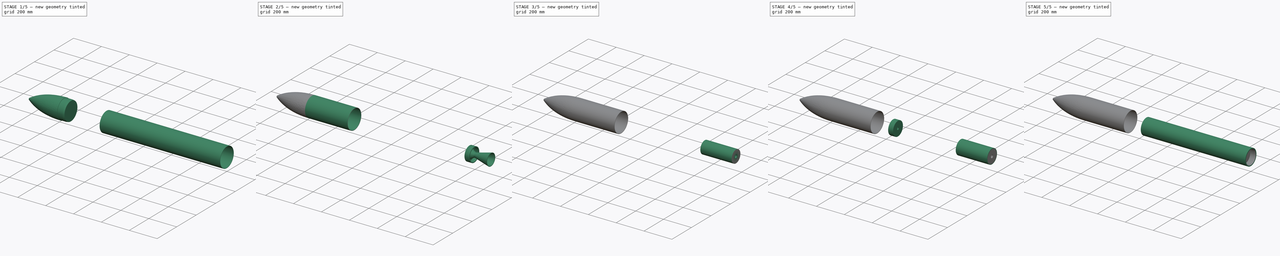
[diagram: build sequence overview — one tinted view per stage of 5, left to right]
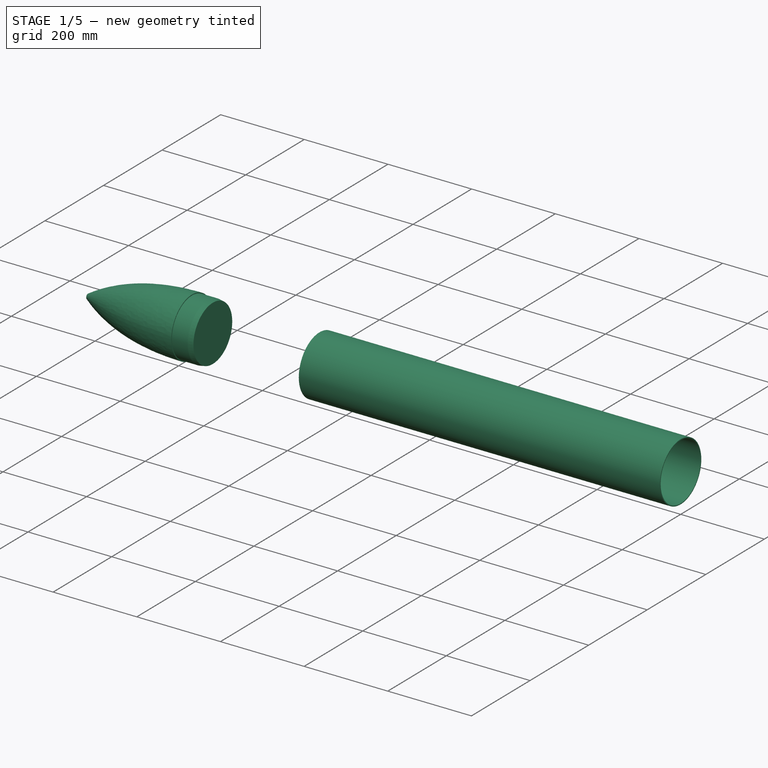
[diagram: stage 1 of 5 — iso view after this stage's code; geometry added in this stage tinted green]
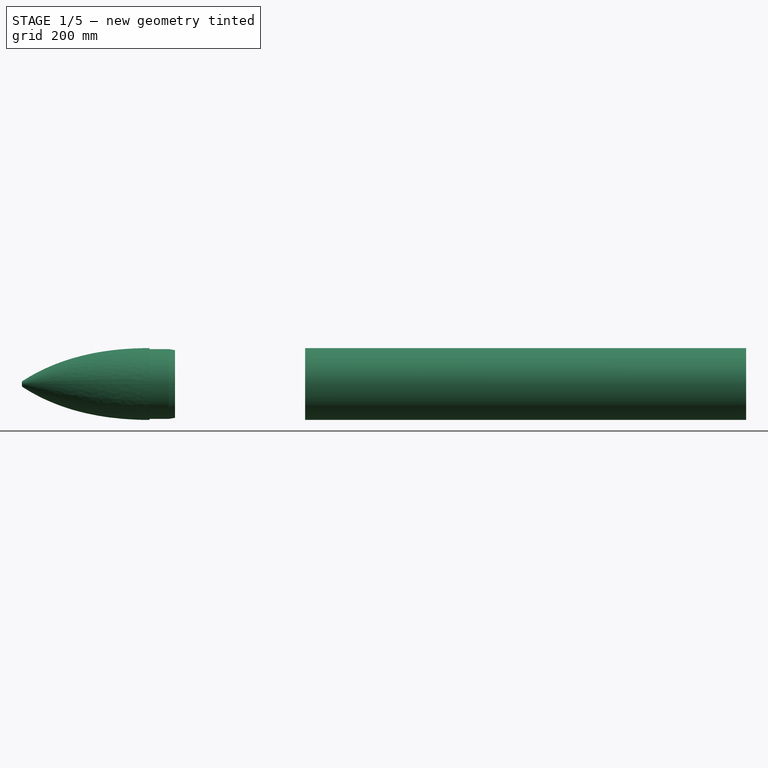
[diagram: stage 1 of 5 — front view after this stage's code; geometry added in this stage tinted green]
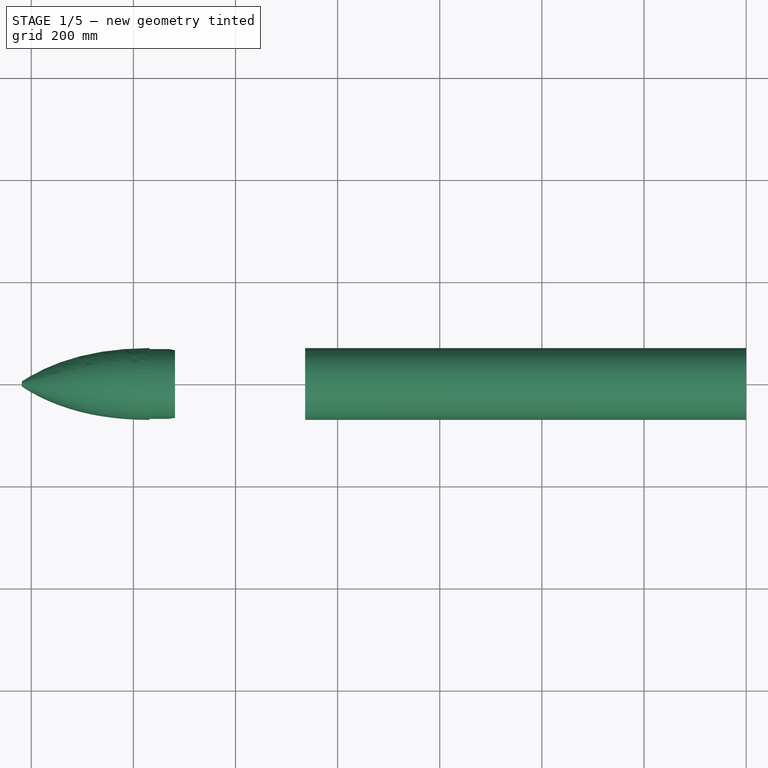
[diagram: stage 1 of 5 — top view after this stage's code; geometry added in this stage tinted green]
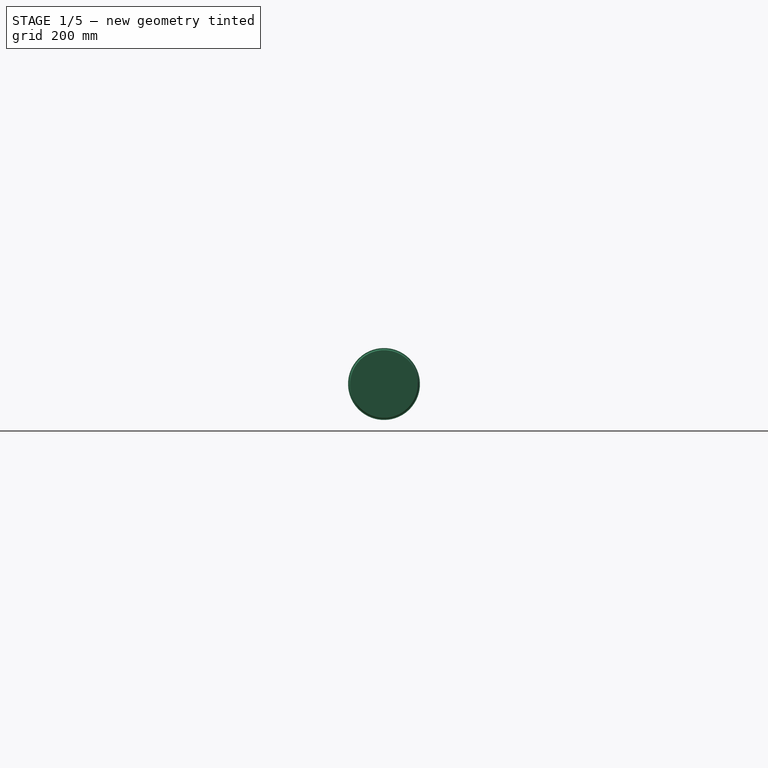
[diagram: stage 1 of 5 — right view after this stage's code; geometry added in this stage tinted green]
FCSTD DOCUMENT  (FreeCAD 0.19R24267 +148 (Git))
Label: rocket3
License: All rights reserved
LicenseURL: http://en.wikipedia.org/wiki/All_rights_reserved
objects: Sketcher::SketchObject×13, PartDesign::Body×8, App::Part×7, PartDesign::CoordinateSystem×6, PartDesign::Pad×5, PartDesign::Revolution×4, PartDesign::Fillet×4, App::DocumentObjectGroup×3, PartDesign::Plane×3, PartDesign::Hole×3, PartDesign::Groove×2, PartDesign::PolarPattern×2, App::Link×2, App::FeaturePython×1, Spreadsheet::Sheet×1, PartDesign::Chamfer×1, Part::Feature×1
note: 71 computed .brp shape members not serialized (recipe doc carries the construction recipe); baked Part::Feature solids carry a one-line shape summary decoded from their .brp

FEATURE [PartDesign::Body] Body004  label="fuel"
  Group = -> [Sketch009,Pad002]
  Origin = -> Origin009
  Tip = -> Pad002
FEATURE [App::Part] FuelSegment
  Group = -> [LCS_0001,Body003,Body004]
  Origin = -> Origin007
FEATURE [App::Link] FuelSegment001
  AssemblyType = Part::Link
  AttachedBy = #LCS_0001
  AttachedTo = Parent Assembly#LCS_Origin
  AttachmentOffset = pos=(-225,0,0) rot=(0,0,1;0rad)
  LinkPlacement = pos=(-225,0,0) rot=(0,0,1;0rad)
  LinkedObject = -> FuelSegment
  Placement = pos=(-225,0,0) rot=(0,0,1;0rad)
  SolverId = Asm4EE
  expr: Placement = LCS_Origin.Placement * AttachmentOffset * LCS_0001.Placement ^ -1
FEATURE [App::Link] FuelSegment002
  AssemblyType = Part::Link
  AttachedBy = #LCS_0001
  AttachedTo = Parent Assembly#LCS_Origin
  AttachmentOffset = pos=(-450,0,0) rot=(0,0,1;0rad)
  LinkPlacement = pos=(-450,0,0) rot=(0,0,1;0rad)
  LinkedObject = -> FuelSegment
  Placement = pos=(-450,0,0) rot=(0,0,1;0rad)
  SolverId = Asm4EE
  expr: Placement = LCS_Origin.Placement * AttachmentOffset * LCS_0001.Placement ^ -1
FEATURE [App::Part] Assembly  label="motor"
  AssemblyType = Part::Link
  Group = -> [LCS_Origin,Variables,Constraints,Configurations,Nozzle,FuelSegment001,FuelSegment002]
  LabelDocUser = rocket
  LabelPartUser = motor
  Origin = -> Origin
  Type = Assembly
FEATURE [PartDesign::CoordinateSystem] LCS_0002
  AttacherType = Attacher::AttachEngine3D
  MapMode = 2
  Support = -> [X_Axis010]
FEATURE [Sketcher::SketchObject] Sketch010
  FullyConstrained = true
  MapMode = 5
  Placement = pos=(0,0,0) rot=(0.57735,0.57735,0.57735;2.0944rad)
  Support = -> [YZ_Plane011]
  expr: Constraints[3] = Spreadsheet.E9 + Spreadsheet.E11
  expr: Constraints[2] = Spreadsheet.E9
  sketch-geometry (2):
    g0: Circle CenterX=0 CenterY=0 CenterZ=0 NormalX=0 NormalY=0 NormalZ=1 AngleXU=0 Radius=68.326
    g1: Circle CenterX=0 CenterY=0 CenterZ=0 NormalX=0 NormalY=0 NormalZ=1 AngleXU=0 Radius=70.358
  constraints (4):
    c: Coincident(g0,g-1)
    c: Coincident(g1,g0)
    c: Radius(g0) = 68.326
    c: Radius(g1) = 70.358
FEATURE [PartDesign::Pad] Pad003
  Direction = (1,1,1)
  Length = 863.6
  Length2 = 100
  Placement = pos=(0,0,0) rot=(0.57735,0.57735,0.57735;2.0944rad)
  Profile = -> Sketch010
  Reversed = true
  Type = 0
  expr: Length = Spreadsheet.G8
FEATURE [PartDesign::Body] Body006  label="TopTube"
  Group = -> [DatumPlane003,Sketch011,Pad004]
  Origin = -> Origin012
  Tip = -> Pad004
FEATURE [App::Part] OuterTube
  Group = -> [LCS_0002,Body005,Body006]
  Origin = -> Origin010
FEATURE [PartDesign::CoordinateSystem] LCS_0003
  AttacherType = Attacher::AttachEngine3D
  MapMode = 2
  Support = -> [X_Axis013]
FEATURE [PartDesign::CoordinateSystem] LCS_0004
  AttacherType = Attacher::AttachEngine3D
  MapMode = 2
  Support = -> [X_Axis014]
FEATURE [Sketcher::SketchObject] Sketch012
  FullyConstrained = false
  MapMode = 5
  Support = -> [XY_Plane014]
  expr: Constraints[18] = Spreadsheet.G10 * 0.6
  expr: Constraints[6] = Spreadsheet.E9 + Spreadsheet.E11
  expr: Constraints[5] = Spreadsheet.G10
  expr: Constraints[32] = Spreadsheet.E11
  expr: Constraints[3] = Spreadsheet.G8 + Spreadsheet.G9
  sketch-geometry (13):
    g0: LineSegment StartX=-1168.4 StartY=0 StartZ=0 EndX=-1418.4 EndY=0 EndZ=0
    g1: LineSegment StartX=-1168.4 StartY=0 StartZ=0 EndX=-1168.4 EndY=-70.358 EndZ=0
    g2: Circle CenterX=-1168.4 CenterY=-70.358 CenterZ=0 NormalX=0 NormalY=0 NormalZ=1 AngleXU=0 Radius=1
    g3: Circle CenterX=-1318.4 CenterY=-70.358 CenterZ=0 NormalX=0 NormalY=0 NormalZ=1 AngleXU=0 Radius=1
    g4: Circle CenterX=-1418.4 CenterY=-5 CenterZ=0 NormalX=0 NormalY=0 NormalZ=1 AngleXU=0 Radius=1
    g5: BSplineCurve PolesCount=3 KnotsCount=2 Degree=2 IsPeriodic=0
    g6: GeomPoint X=-1168.4 Y=-70.358 Z=0
    g7: GeomPoint X=-1418.4 Y=-5 Z=0
    g8: LineSegment StartX=-1418.4 StartY=-5 StartZ=0 EndX=-1418.4 EndY=0 EndZ=0
    g9: LineSegment StartX=-1168.4 StartY=-70.358 StartZ=0 EndX=-1168.4 EndY=-68.326 EndZ=0
    g10: LineSegment StartX=-1168.4 StartY=-68.326 StartZ=0 EndX=-1118.4 EndY=-68.326 EndZ=0
    g11: LineSegment StartX=-1168.4 StartY=0 StartZ=0 EndX=-1118.4 EndY=0 EndZ=0
    g12: LineSegment StartX=-1118.4 StartY=-68.326 StartZ=0 EndX=-1118.4 EndY=0 EndZ=0
  constraints (33):
    c: Horizontal(g0)
    c: Coincident(g1,g0)
    c: Vertical(g1)
    c: DistanceX(g1,g-1) = 1168.4
    c: PointOnObject(g0,g-1)
    c: DistanceX(g0,g0) = 250
    c: DistanceY(g1,g1) = 70.358
    c: Coincident(g5,g1)
    c: Weight(g2) = 1
    c: Equal(g2,g3)
    c: Equal(g2,g4)
    c: InternalAlignment(g2,g5)
    c: InternalAlignment(g3,g5)
    c: InternalAlignment(g4,g5)
    c: InternalAlignment(g6,g5)
    c: InternalAlignment(g7,g5)
    c: Vertical(g5,g0)
    c: Horizontal(g5,g3)
    c: DistanceX(g3,g5) = 150
    c: DistanceY(g5,g0) = 5
    c: Coincident(g8,g5)
    c: Coincident(g8,g0)
    c: Coincident(g9,g5)
    c: PointOnObject(g9,g1)
    c: Coincident(g10,g9)
    c: Horizontal(g10)
    c: PointOnObject(g11,g-1)
    c: Horizontal(g11)
    c: Coincident(g12,g10)
    c: Coincident(g12,g11)
    c: Vertical(g12)
    c: DistanceX(g10,g10) = 50
    c: DistanceY(g9,g9) = 2.032
FEATURE [PartDesign::Revolution] Revolution003
  Angle = 360
  Axis = (1,0,0)
  Base = (0,0,0)
  Profile = -> Sketch012
  ReferenceAxis = -> X_Axis014
  Reversed = true
FEATURE [PartDesign::Chamfer] Chamfer
  Angle = 10
  Base = -> Revolution003 [Edge5]
  BaseFeature = -> Revolution003
  ChamferType = 2
  FlipDirection = false
  Size = 12
  Size2 = 1
  SupportTransform = false
FEATURE [PartDesign::Fillet] Fillet003
  Base = -> Chamfer [Edge7]
  BaseFeature = -> Chamfer
  Radius = 5
  SupportTransform = false
FEATURE [PartDesign::Body] Cone
  Group = -> [LCS_0004,Sketch012,Revolution003,Chamfer,Fillet003]
  Origin = -> Origin014
  Tip = -> Fillet003
FEATURE [App::Part] NoseCone
  Group = -> [LCS_0003,Cone]
  Origin = -> Origin013
FEATURE [App::DocumentObjectGroup] Parts
  Group = -> [Assembly,FuelSegment,Part,Part001,OuterTube,NoseCone]
FEATURE [Part::Feature] Part__Feature  label="Arduino"
  Placement = pos=(-1100,0,25) rot=(0,0,1;0rad)
  shape: bbox 75.08 x 14.03 x 53.34 mm, 2276 faces (baked)
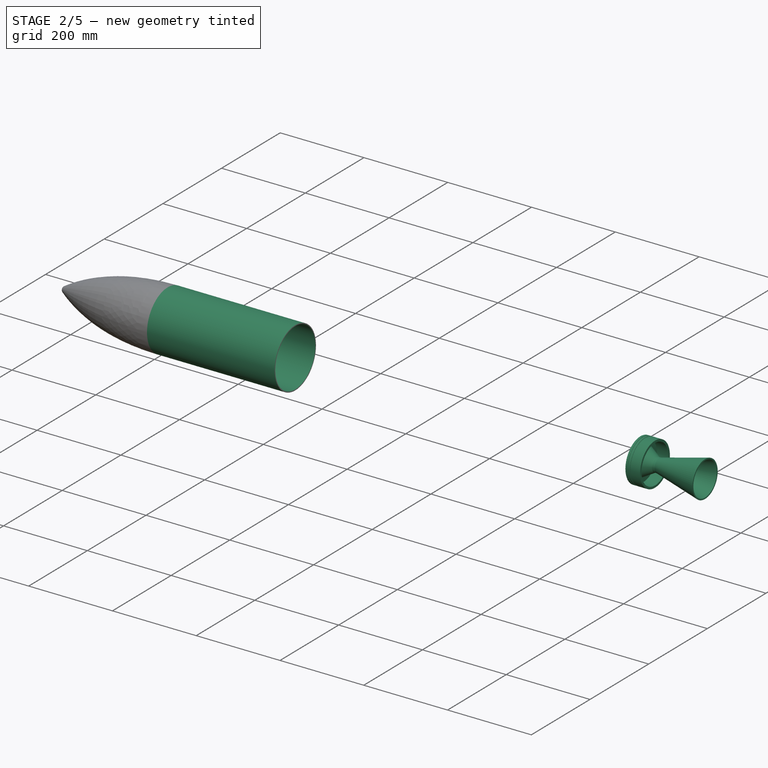
[diagram: stage 2 of 5 — iso view after this stage's code; geometry added in this stage tinted green]
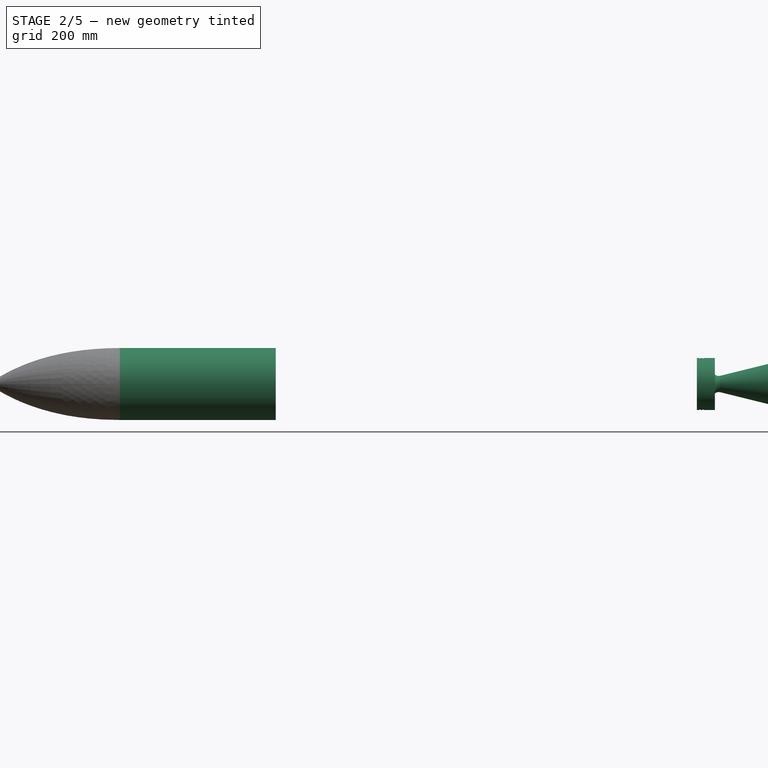
[diagram: stage 2 of 5 — front view after this stage's code; geometry added in this stage tinted green]
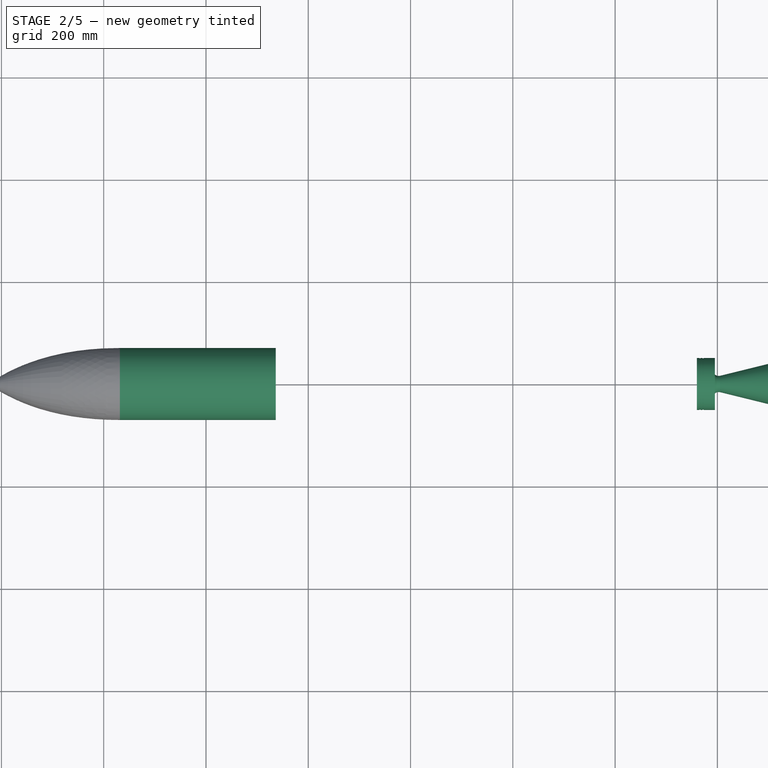
[diagram: stage 2 of 5 — top view after this stage's code; geometry added in this stage tinted green]
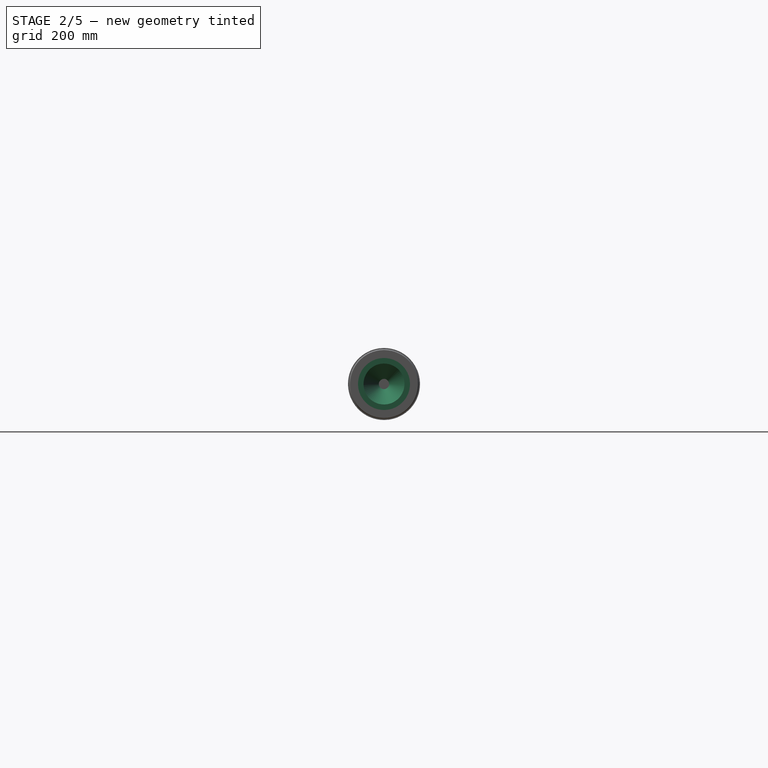
[diagram: stage 2 of 5 — right view after this stage's code; geometry added in this stage tinted green]
FEATURE [PartDesign::CoordinateSystem] LCS_Origin
  AttacherType = Attacher::AttachEngine3D
  MapMode = 2
  Support = -> [X_Axis]
FEATURE [App::FeaturePython] Variables  # WARN: FeaturePython — macro-defined, semantics opaque (R4)
  Type = App::PropertyContainer
  chamber_angle = 30
  exit_half_angle = 10
  exit_radius = 10
  throat_radius = 10
  throat_radius1 = 0
  useParabola = false
FEATURE [App::DocumentObjectGroup] Constraints
FEATURE [App::DocumentObjectGroup] Configurations
FEATURE [PartDesign::CoordinateSystem] LCS_0
  AttacherType = Attacher::AttachEngine3D
  MapMode = 2
  Support = -> [X_Axis001]
FEATURE [Spreadsheet::Sheet] Spreadsheet
  cells = A1=units; B1=mm-kg-s; D1=inch to mm; E1=25.4; A3=P0; D3=casing holes; A4=T0; D4=M10 x 1.5mm 30mm; E4=10; A6=throat area; B6==3.14159265 * B11 * B11; D6=o ring width; E6=2; A7=area ratio; B7=16; F7=bottom tube length; G7=34; A8=half angle; B8=15; D8=tube ID (in); E8=5.38; F8=bottom tube length; G8==G7 * E1; A9=exit area; B9==B6 * B7; D9=tube inner radius (mm); E9==E8 * E1 / 2; F9=top tube length; G9==12 * E1; D10=tube thickness (in); E10=0.08; F10=nosecone length; G10=250; A11=throat radius; B11=10; D11=rube thickness (mm); E11==E10 * E1; A12=exit radius; B12==sqrt(B7) * B11; A13=chamber OD; B13=50.8; C13=ID; D13=44.72; A15=Nozzle Tip Thickness; B15=3; A16=Throat Thickenss; B16=6; A18=casing thickness; B18=6.35; A19=case length; B19=750; A20=segment length; B20==(B19 - 75) / B21; A21=number segments; B21=3
FEATURE [Sketcher::SketchObject] Sketch001
  FullyConstrained = true
  MapMode = 5
  Support = -> [XY_Plane002]
  expr: Constraints[39] = Spreadsheet.B11 * 3
  expr: Constraints[36] = Spreadsheet.B16 * 1.25
  expr: Constraints[18] = Spreadsheet.B15
  expr: Constraints[40] = Spreadsheet.B16 * 1.25
  expr: Constraints[1] = Spreadsheet.B11
  expr: Constraints[8] = Spreadsheet.B13
  expr: Constraints[5] = Spreadsheet.B8
  expr: Constraints[2] = Spreadsheet.B12
  expr: Constraints[19] = Spreadsheet.B16
  sketch-geometry (15):
    g0: LineSegment StartX=114.595 StartY=40 StartZ=0 EndX=5.17638 EndY=10.6815 EndZ=0
    g1: ArcOfCircle CenterX=0 CenterY=30 CenterZ=0 NormalX=0 NormalY=0 NormalZ=1 AngleXU=0 Radius=20 StartAngle=4.71239 EndAngle=4.97419
    g2: LineSegment StartX=-40 StartY=30 StartZ=0 EndX=-40 EndY=50.8 EndZ=0
    g3: LineSegment StartX=114.595 StartY=40 StartZ=0 EndX=114.595 EndY=43 EndZ=0
    g4: LineSegment StartX=5.17638 StartY=10.6815 StartZ=0 EndX=5.17638 EndY=16 EndZ=0
    g5: LineSegment StartX=5.17638 StartY=16 StartZ=0 EndX=-1.8e-15 EndY=16 EndZ=0
    g6: LineSegment StartX=114.595 StartY=43 StartZ=0 EndX=5.17638 EndY=16 EndZ=0
    g7: LineSegment StartX=-40 StartY=50.8 StartZ=0 EndX=-5 EndY=50.8 EndZ=0
    g8: LineSegment StartX=-5 StartY=50.8 StartZ=0 EndX=-5 EndY=45.8 EndZ=0
    g9: LineSegment StartX=-5 StartY=45.8 StartZ=0 EndX=-32.5 EndY=45.8 EndZ=0
    g10: LineSegment StartX=-32.5 StartY=34.3301 StartZ=0 EndX=-32.5 EndY=45.8 EndZ=0
    g11: ArcOfCircle CenterX=0 CenterY=30 CenterZ=0 NormalX=0 NormalY=0 NormalZ=1 AngleXU=0 Radius=20 StartAngle=4.18879 EndAngle=4.71239
    g12: LineSegment StartX=-10 StartY=12.6795 StartZ=0 EndX=-40 EndY=30 EndZ=0
    g13: LineSegment StartX=-32.5 StartY=34.3301 StartZ=0 EndX=-1.40192 EndY=16.3756 EndZ=0
    g14: ArcOfCircle CenterX=-1.63e-14 CenterY=18.8038 CenterZ=0 NormalX=0 NormalY=0 NormalZ=1 AngleXU=0 Radius=2.80385 StartAngle=4.18879 EndAngle=4.71239
  constraints (42):
    c: PointOnObject(g1,g-2)
    c: DistanceY(g-1,g1) = 10
    c: DistanceY(g-1,g0) = 40
    c: PointOnObject(g1,g-2)
    c: Tangent(g1,g0) = 1.5708
    c: Angle(g-1,g0) = 0.261799
    c: Radius(g1) = 20
    c: Vertical(g2)
    c: DistanceY(g-1,g2) = 50.8
    c: Coincident(g3,g0)
    c: Vertical(g3)
    c: Coincident(g4,g0)
    c: Vertical(g4)
    c: Coincident(g5,g4)
    c: PointOnObject(g5,g-2)
    c: Horizontal(g5)
    c: Coincident(g6,g3)
    c: Coincident(g6,g4)
    c: DistanceY(g3,g3) = 3
    c: DistanceY(g1,g5) = 6
    c: Coincident(g7,g2)
    c: Horizontal(g7)
    c: Coincident(g8,g7)
    c: Vertical(g8)
    c: Coincident(g9,g8)
    c: Horizontal(g9)
    c: DistanceY(g8,g8) = 5
    c: DistanceX(g2,g7) = 35
    c: Vertical(g10)
    c: Coincident(g11,g1)
    c: Coincident(g11,g1)
    c: Coincident(g12,g2)
    c: Tangent(g12,g11) = 1.5708
    c: Angle(g-2,g12) = 1.0472
    c: Coincident(g13,g10)
    c: Parallel(g13,g12)
    c: DistanceX(g2,g10) = 7.5
    c: Tangent(g14,g13) = -1.5708
    c: Tangent(g14,g5) = 1.5708
    c: DistanceY(g-1,g2) = 30
    c: Distance(g13,g12) = 7.5
    c: Coincident(g9,g10)
FEATURE [PartDesign::Revolution] Revolution
  Angle = 360
  Axis = (1,0,0)
  Base = (0,0,0)
  Profile = -> Sketch001
  ReferenceAxis = -> Sketch001 [H_Axis]
FEATURE [Sketcher::SketchObject] Sketch
  ExternalGeometry = -> [Revolution]
  FullyConstrained = true
  MapMode = 5
  Support = -> [XY_Plane002]
  expr: Constraints[21] = 5 + Spreadsheet.E6 / 2
  expr: Constraints[18] = Spreadsheet.E6 * 0.4
  expr: Constraints[19] = Spreadsheet.E6
  sketch-geometry (8):
    g0: LineSegment StartX=-35 StartY=50.8 StartZ=0 EndX=-33 EndY=50.8 EndZ=0
    g1: LineSegment StartX=-33 StartY=50.8 StartZ=0 EndX=-33 EndY=50 EndZ=0
    g2: LineSegment StartX=-33 StartY=50 StartZ=0 EndX=-35 EndY=50 EndZ=0
    g3: LineSegment StartX=-35 StartY=50 StartZ=0 EndX=-35 EndY=50.8 EndZ=0
    g4: LineSegment StartX=-29 StartY=50.8 StartZ=0 EndX=-27 EndY=50.8 EndZ=0
    g5: LineSegment StartX=-27 StartY=50.8 StartZ=0 EndX=-27 EndY=50 EndZ=0
    g6: LineSegment StartX=-27 StartY=50 StartZ=0 EndX=-29 EndY=50 EndZ=0
    g7: LineSegment StartX=-29 StartY=50 StartZ=0 EndX=-29 EndY=50.8 EndZ=0
  constraints (24):
    c: Coincident(g0,g1)
    c: Coincident(g1,g2)
    c: Coincident(g2,g3)
    c: Coincident(g3,g0)
    c: Horizontal(g0)
    c: Horizontal(g2)
    c: Vertical(g1)
    c: Vertical(g3)
    c: Coincident(g4,g5)
    c: Coincident(g5,g6)
    c: Coincident(g6,g7)
    c: Coincident(g7,g4)
    c: Horizontal(g4)
    c: Horizontal(g6)
    c: Vertical(g5)
    c: Vertical(g7)
    c: Equal(g3,g7)
    c: Equal(g4,g0)
    c: DistanceY(g3,g3) = 0.8
    c: DistanceX(g0,g0) = 2
    c: DistanceX(g-3,g0) = 5
    c: DistanceX(g0,g4) = 6
    c: PointOnObject(g-3,g4)
    c: PointOnObject(g-3,g0)
FEATURE [PartDesign::Groove] Groove
  Angle = 360
  Axis = (1,0,0)
  Base = (0,0,0)
  BaseFeature = -> Revolution
  Profile = -> Sketch
  ReferenceAxis = -> Sketch [H_Axis]
  Reversed = true
FEATURE [PartDesign::Fillet] Fillet
  Base = -> Groove [Edge15]
  BaseFeature = -> Groove
  Radius = 10
  SupportTransform = false
FEATURE [PartDesign::Body] Body005  label="BottomTube"
  Group = -> [Sketch010,Pad003]
  Origin = -> Origin011
  Tip = -> Pad003
FEATURE [PartDesign::Plane] DatumPlane003
  Length = 168.312
  MapMode = 5
  Placement = pos=(-863.6,3.835e-13,-2.876e-13) rot=(0.57735,0.57735,-0.57735;4.18879rad)
  ResizeMode = 0
  Support = -> [Pad003]
  Width = 168.55
FEATURE [Sketcher::SketchObject] Sketch011
  FullyConstrained = true
  MapMode = 5
  Placement = pos=(-863.6,3.835e-13,-2.876e-13) rot=(-0.57735,-0.57735,0.57735;2.0944rad)
  Support = -> [DatumPlane003]
  expr: Constraints[3] = Spreadsheet.E9 + Spreadsheet.E11
  expr: Constraints[2] = Spreadsheet.E9
  sketch-geometry (2):
    g0: Circle CenterX=0 CenterY=0 CenterZ=0 NormalX=0 NormalY=0 NormalZ=1 AngleXU=0 Radius=68.326
    g1: Circle CenterX=0 CenterY=0 CenterZ=0 NormalX=0 NormalY=0 NormalZ=1 AngleXU=0 Radius=70.358
  constraints (4):
    c: Coincident(g0,g-1)
    c: Coincident(g1,g0)
    c: Radius(g0) = 68.326
    c: Radius(g1) = 70.358
FEATURE [PartDesign::Pad] Pad004
  Direction = (1,1,1)
  Length = 304.8
  Length2 = 100
  Placement = pos=(-863.6,3.835e-13,-2.876e-13) rot=(0.57735,0.57735,-0.57735;4.18879rad)
  Profile = -> Sketch011
  Type = 0
  expr: Length = Spreadsheet.G9
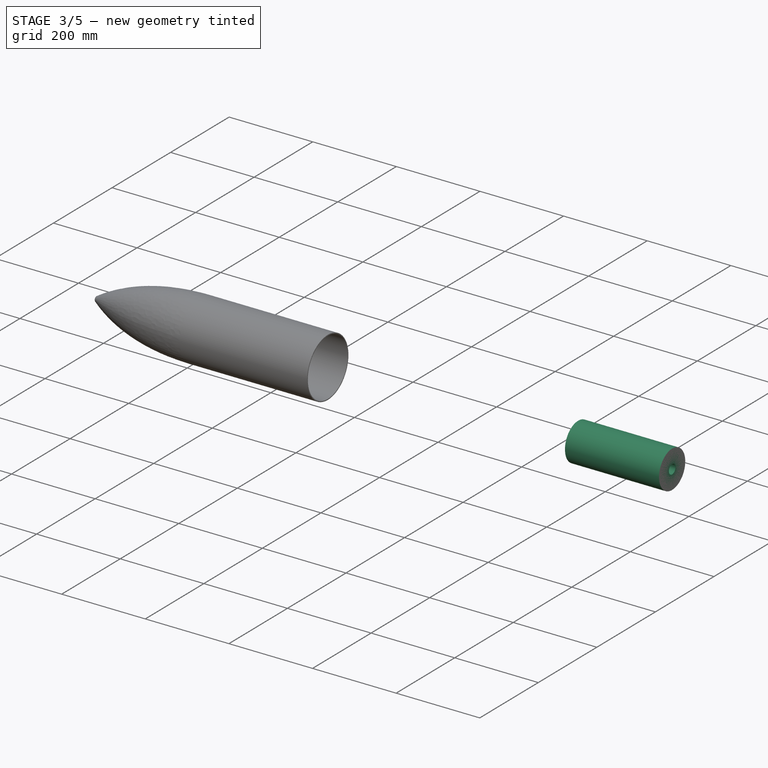
[diagram: stage 3 of 5 — iso view after this stage's code; geometry added in this stage tinted green]
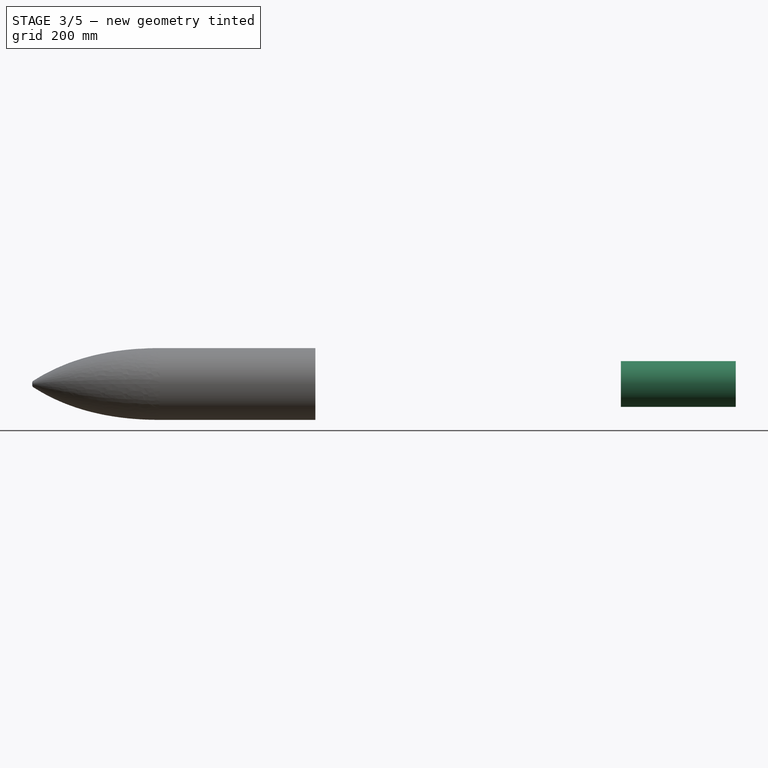
[diagram: stage 3 of 5 — front view after this stage's code; geometry added in this stage tinted green]
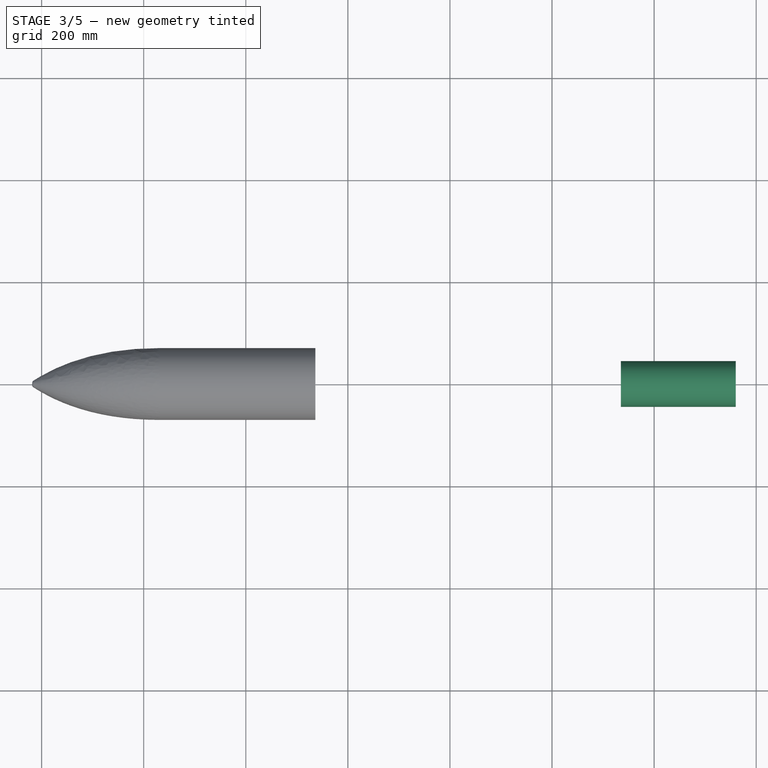
[diagram: stage 3 of 5 — top view after this stage's code; geometry added in this stage tinted green]
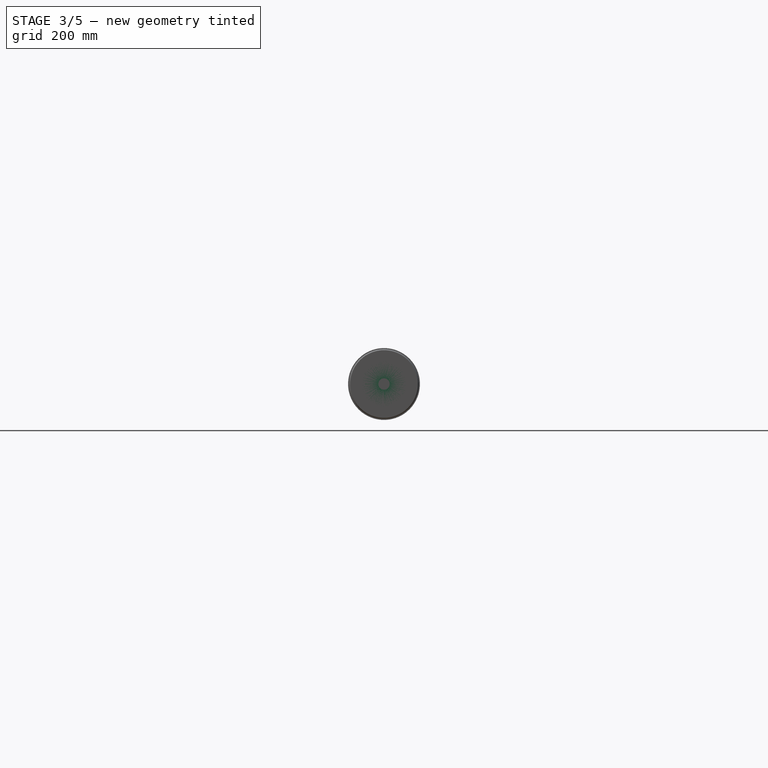
[diagram: stage 3 of 5 — right view after this stage's code; geometry added in this stage tinted green]
FEATURE [Sketcher::SketchObject] Sketch002
  FullyConstrained = false
  MapMode = 5
  Support = -> [XY_Plane002]
  sketch-geometry (3):
    g0: LineSegment StartX=114.595 StartY=43 StartZ=0 EndX=109.595 EndY=43 EndZ=0
    g1: LineSegment StartX=109.595 StartY=43 StartZ=0 EndX=109.595 EndY=41.7662 EndZ=0
    g2: LineSegment StartX=114.595 StartY=43 StartZ=0 EndX=109.595 EndY=41.7662 EndZ=0
  constraints (6):
    c: Horizontal(g0)
    c: Coincident(g1,g0)
    c: Vertical(g1)
    c: DistanceX(g0,g0) = 5
    c: Coincident(g2,g0)
    c: Coincident(g2,g1)
FEATURE [PartDesign::Revolution] Revolution001
  Angle = 360
  Axis = (1,0,0)
  Base = (0,0,0)
  BaseFeature = -> Fillet
  Profile = -> Sketch002
  ReferenceAxis = -> X_Axis002
FEATURE [PartDesign::Body] Body001
  Group = -> [Sketch003,Pad]
  Origin = -> Origin004
  Tip = -> Pad
FEATURE [App::Part] Part  label="casing"
  Group = -> [Body001]
  Origin = -> Origin003
FEATURE [PartDesign::Plane] DatumPlane  label="plane_for_bolts"
  AttachmentOffset = pos=(0,0,50.8) rot=(0,0,1;0rad)
  Length = 179.66
  MapMode = 3
  Placement = pos=(0,1.13e-14,-50.8) rot=(1,0,0;3.14159rad)
  ResizeMode = 0
  Support = -> [XZ_Plane002]
  Width = 126.665
  expr: .AttachmentOffset.Base.z = Spreadsheet.B13
  expr: .AttachmentOffset.Base.y = 0
FEATURE [Sketcher::SketchObject] Sketch004
  FullyConstrained = true
  MapMode = 5
  Placement = pos=(0,1.13e-14,-50.8) rot=(1,0,0;3.14159rad)
  Support = -> [DatumPlane]
  expr: Constraints[0] = Spreadsheet.E4 / 2
  sketch-geometry (1):
    g0: Circle CenterX=-15 CenterY=0 CenterZ=0 NormalX=0 NormalY=0 NormalZ=1 AngleXU=0 Radius=5
  constraints (3):
    c: Radius(g0) = 5
    c: Horizontal(g-1,g0)
    c: DistanceX(g-1,g0) = -15
FEATURE [PartDesign::Hole] Hole
  BaseFeature = -> Revolution001
  Depth = 12
  DepthType = 0
  Diameter = 11
  DrillForDepth = false
  DrillPoint = 1
  DrillPointAngle = 118
  HoleCutCountersinkAngle = 90
  HoleCutCustomValues = false
  HoleCutDepth = 0
  HoleCutDiameter = 11.1
  HoleCutType = 0
  ModelActualThread = false
  Profile = -> Sketch004
  Tapered = false
  TaperedAngle = 90
  ThreadAngle = 0
  ThreadClass = 0
  ThreadCutOffInner = 0
  ThreadCutOffOuter = 0
  ThreadDirection = 0
  ThreadFit = 0
  ThreadPitch = 0
  ThreadSize = 18
  ThreadType = 1
  Threaded = false
FEATURE [PartDesign::PolarPattern] PolarPattern
  Angle = 360
  Axis = -> X_Axis002
  BaseFeature = -> Hole
  Occurrences = 4
  Originals = -> [Hole]
FEATURE [PartDesign::Fillet] Fillet001
  Base = -> PolarPattern [Face23]
  BaseFeature = -> PolarPattern
  Radius = 5
  SupportTransform = false
FEATURE [PartDesign::Body] Body003  label="pvc"
  Group = -> [Sketch008,Pad001]
  Origin = -> Origin008
  Tip = -> Pad001
FEATURE [Sketcher::SketchObject] Sketch009
  FullyConstrained = true
  MapMode = 5
  Placement = pos=(-40,0,0) rot=(0.57735,-0.57735,-0.57735;2.0944rad)
  Support = -> [DatumPlane002]
  expr: Constraints[3] = Spreadsheet.D13 / 4
  expr: Constraints[1] = Spreadsheet.D13
  sketch-geometry (2):
    g0: Circle CenterX=0 CenterY=0 CenterZ=0 NormalX=0 NormalY=0 NormalZ=1 AngleXU=0 Radius=44.72
    g1: Circle CenterX=0 CenterY=0 CenterZ=0 NormalX=0 NormalY=0 NormalZ=1 AngleXU=0 Radius=11.18
  constraints (4):
    c: Coincident(g0,g-1)
    c: Radius(g0) = 44.72
    c: Coincident(g1,g0)
    c: Radius(g1) = 11.18
FEATURE [PartDesign::Pad] Pad002
  Direction = (1,1,1)
  Length = 225
  Length2 = 100
  Placement = pos=(-40,0,0) rot=(0.57735,-0.57735,-0.57735;2.0944rad)
  Profile = -> Sketch009
  Type = 0
  expr: Length = Spreadsheet.B20
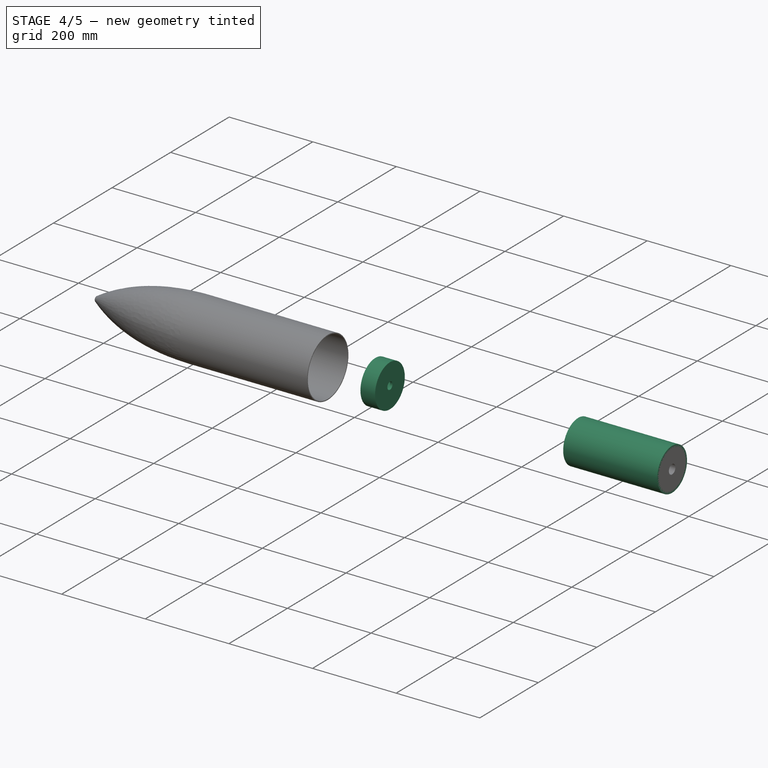
[diagram: stage 4 of 5 — iso view after this stage's code; geometry added in this stage tinted green]
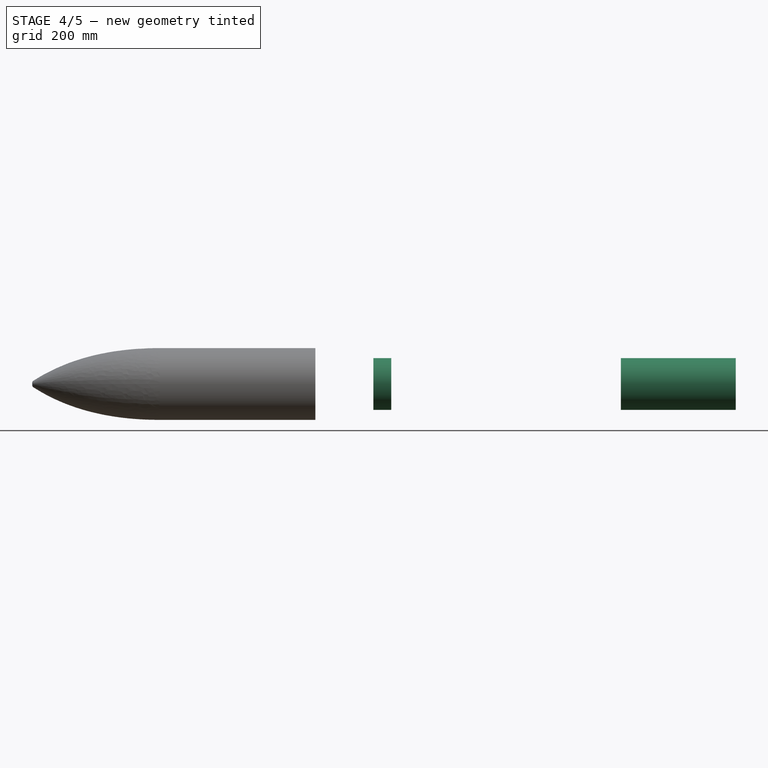
[diagram: stage 4 of 5 — front view after this stage's code; geometry added in this stage tinted green]
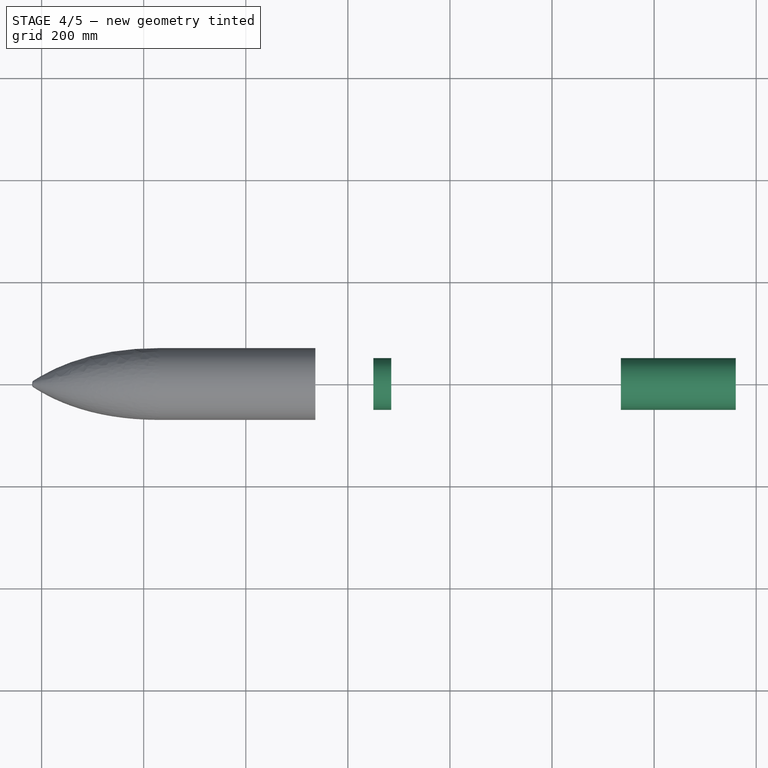
[diagram: stage 4 of 5 — top view after this stage's code; geometry added in this stage tinted green]
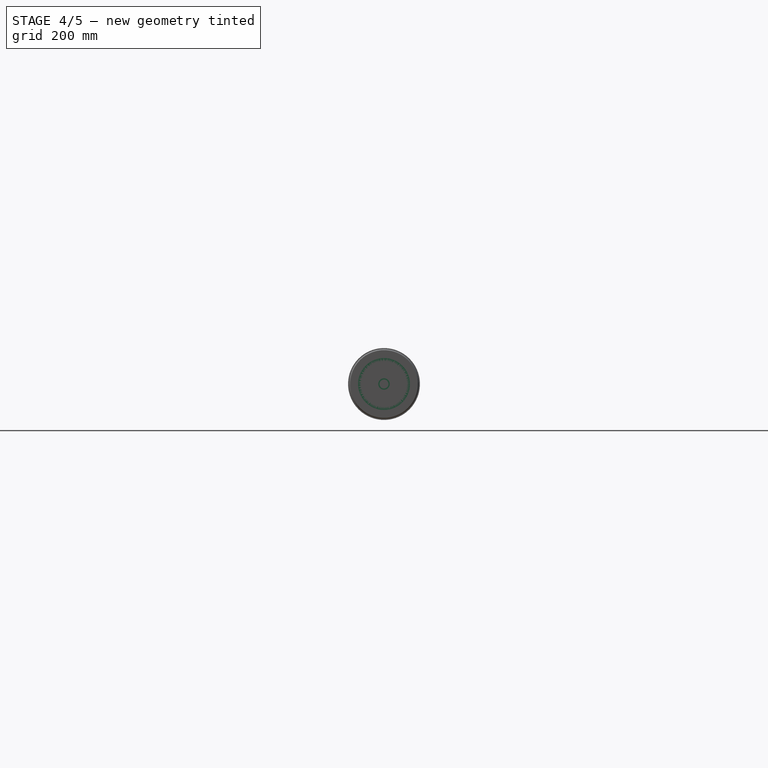
[diagram: stage 4 of 5 — right view after this stage's code; geometry added in this stage tinted green]
FEATURE [Sketcher::SketchObject] Sketch005
  FullyConstrained = true
  MapMode = 3
  Placement = pos=(0,0,0) rot=(1,0,0;3.14159rad)
  Support = -> [XZ_Plane006]
  expr: Constraints[17] = Spreadsheet.B19
  expr: Constraints[15] = Spreadsheet.B16
  expr: Constraints[11] = Spreadsheet.B13
  sketch-geometry (6):
    g0: LineSegment StartX=-715 StartY=50.8 StartZ=0 EndX=-715 EndY=0 EndZ=0
    g1: LineSegment StartX=-715 StartY=50.8 StartZ=0 EndX=-750 EndY=50.8 EndZ=0
    g2: LineSegment StartX=-750 StartY=45.8 StartZ=0 EndX=-721 EndY=45.8 EndZ=0
    g3: LineSegment StartX=-721 StartY=0 StartZ=0 EndX=-715 EndY=0 EndZ=0
    g4: LineSegment StartX=-721 StartY=0 StartZ=0 EndX=-721 EndY=45.8 EndZ=0
    g5: LineSegment StartX=-750 StartY=50.8 StartZ=0 EndX=-750 EndY=45.8 EndZ=0
  constraints (18):
    c: Vertical(g0)
    c: Coincident(g1,g0)
    c: Horizontal(g1)
    c: Horizontal(g2)
    c: PointOnObject(g3,g-1)
    c: Coincident(g3,g0)
    c: Coincident(g4,g3)
    c: Coincident(g4,g2)
    c: Vertical(g4)
    c: Coincident(g5,g1)
    c: Coincident(g5,g2)
    c: DistanceY(g0,g0) = 50.8
    c: PointOnObject(g0,g-1)
    c: Vertical(g5)
    c: DistanceY(g5,g5) = 5
    c: DistanceX(g3,g0) = 6
    c: DistanceX(g1,g0) = 35
    c: DistanceX(g1,g-1) = 750
FEATURE [PartDesign::Revolution] Revolution002
  Angle = 360
  Axis = (1,0,0)
  Base = (0,0,0)
  Placement = pos=(0,0,0) rot=(1,0,0;1.5708rad)
  Profile = -> Sketch005
  ReferenceAxis = -> X_Axis006
FEATURE [PartDesign::Fillet] Fillet002
  Base = -> Revolution002 [Face3]
  BaseFeature = -> Revolution002
  Placement = pos=(0,0,0) rot=(1,0,0;1.5708rad)
  Radius = 10
  SupportTransform = false
FEATURE [PartDesign::Hole] Hole001
  BaseFeature = -> Fillet002
  Depth = 25
  DepthType = 0
  Diameter = 17.5
  DrillForDepth = false
  DrillPoint = 1
  DrillPointAngle = 118
  HoleCutCountersinkAngle = 90
  HoleCutCustomValues = false
  HoleCutDepth = 0
  HoleCutDiameter = 6.1
  HoleCutType = 0
  ModelActualThread = false
  Placement = pos=(0,0,0) rot=(1,0,0;1.5708rad)
  Profile = -> Fillet002 [Face6]
  Tapered = false
  TaperedAngle = 90
  ThreadAngle = 0
  ThreadClass = 0
  ThreadCutOffInner = 0
  ThreadCutOffOuter = 0
  ThreadDirection = 0
  ThreadFit = 0
  ThreadPitch = 0
  ThreadSize = 22
  ThreadType = 1
  Threaded = false
FEATURE [PartDesign::Body] Body002
  Group = -> [Sketch005,Revolution002,Fillet002,Hole001,Sketch006,Groove001,Sketch007,Hole002,PolarPattern001]
  Origin = -> Origin006
  Tip = -> PolarPattern001
FEATURE [App::Part] Part001  label="bulkhead"
  Group = -> [Body002]
  Origin = -> Origin005
FEATURE [PartDesign::CoordinateSystem] LCS_0001
  AttacherType = Attacher::AttachEngine3D
  MapMode = 2
  Support = -> [X_Axis007]
FEATURE [PartDesign::Plane] DatumPlane002  label="plane_for_combustion_face"
  Length = 121.92
  MapMode = 5
  Placement = pos=(-40,0,0) rot=(0.57735,-0.57735,-0.57735;2.0944rad)
  ResizeMode = 0
  Support = -> [Fillet001]
  Width = 121.92
FEATURE [PartDesign::Body] Body
  Group = -> [Sketch001,Revolution,Sketch,Groove,Fillet,Sketch002,Revolution001,DatumPlane,Sketch004,Hole,PolarPattern,Fillet001,DatumPlane002]
  Origin = -> Origin002
  Tip = -> Fillet001
FEATURE [App::Part] Nozzle
  Group = -> [LCS_0,Body]
  Origin = -> Origin001
FEATURE [Sketcher::SketchObject] Sketch008
  FullyConstrained = true
  MapMode = 5
  Placement = pos=(-40,0,0) rot=(0.57735,-0.57735,-0.57735;2.0944rad)
  Support = -> [DatumPlane002]
  expr: Constraints[3] = Spreadsheet.D13
  expr: Constraints[1] = Spreadsheet.B13
  sketch-geometry (2):
    g0: Circle CenterX=0 CenterY=0 CenterZ=0 NormalX=0 NormalY=0 NormalZ=1 AngleXU=0 Radius=50.8
    g1: Circle CenterX=0 CenterY=0 CenterZ=0 NormalX=0 NormalY=0 NormalZ=1 AngleXU=0 Radius=44.72
  constraints (4):
    c: Coincident(g0,g-1)
    c: Radius(g0) = 50.8
    c: Coincident(g1,g0)
    c: Radius(g1) = 44.72
FEATURE [PartDesign::Pad] Pad001
  Direction = (1,1,1)
  Length = 225
  Length2 = 100
  Placement = pos=(-40,0,0) rot=(0.57735,-0.57735,-0.57735;2.0944rad)
  Profile = -> Sketch008
  Type = 0
  expr: Length = Spreadsheet.B20
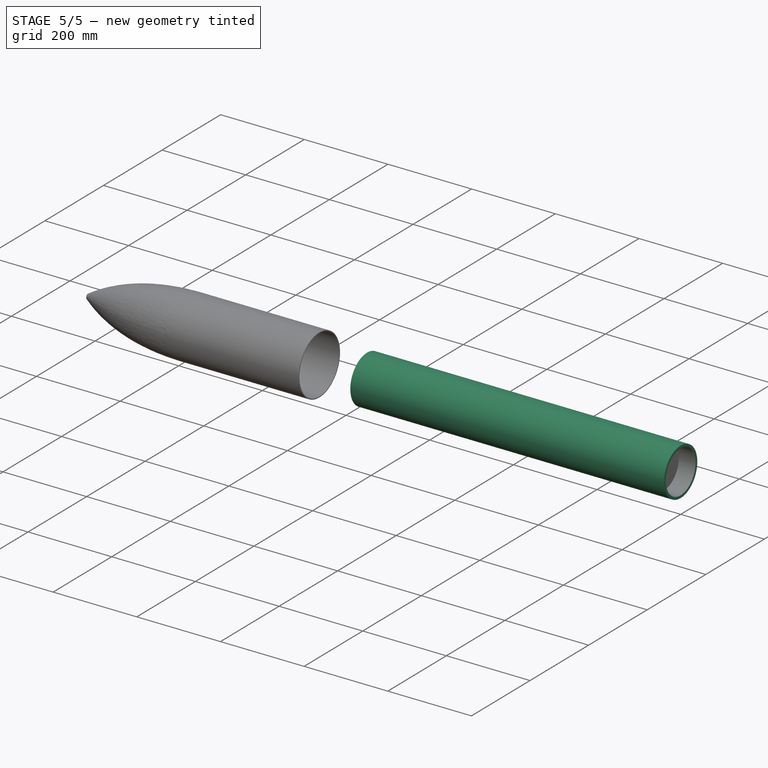
[diagram: stage 5 of 5 — iso view after this stage's code; geometry added in this stage tinted green]
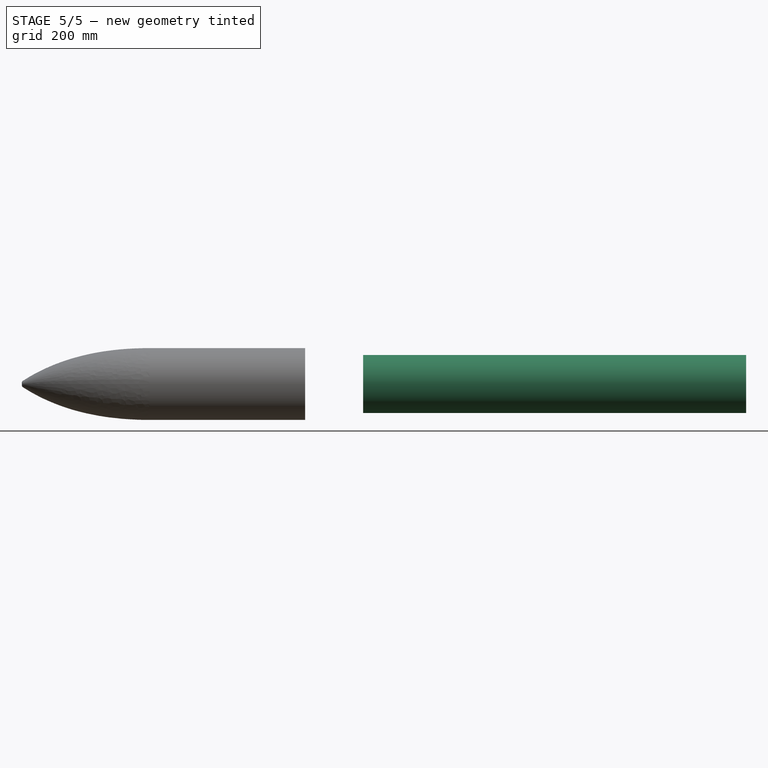
[diagram: stage 5 of 5 — front view after this stage's code; geometry added in this stage tinted green]
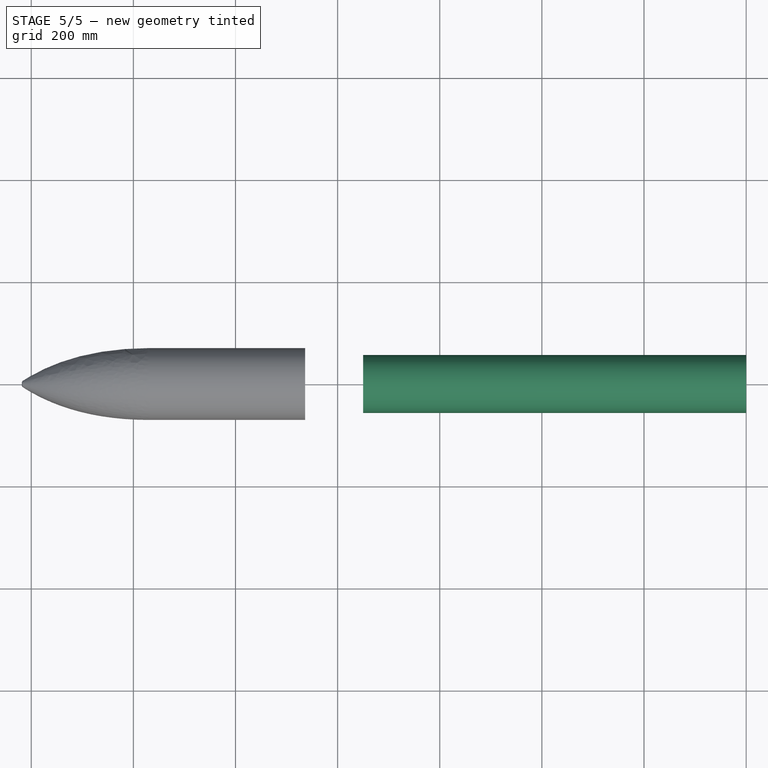
[diagram: stage 5 of 5 — top view after this stage's code; geometry added in this stage tinted green]
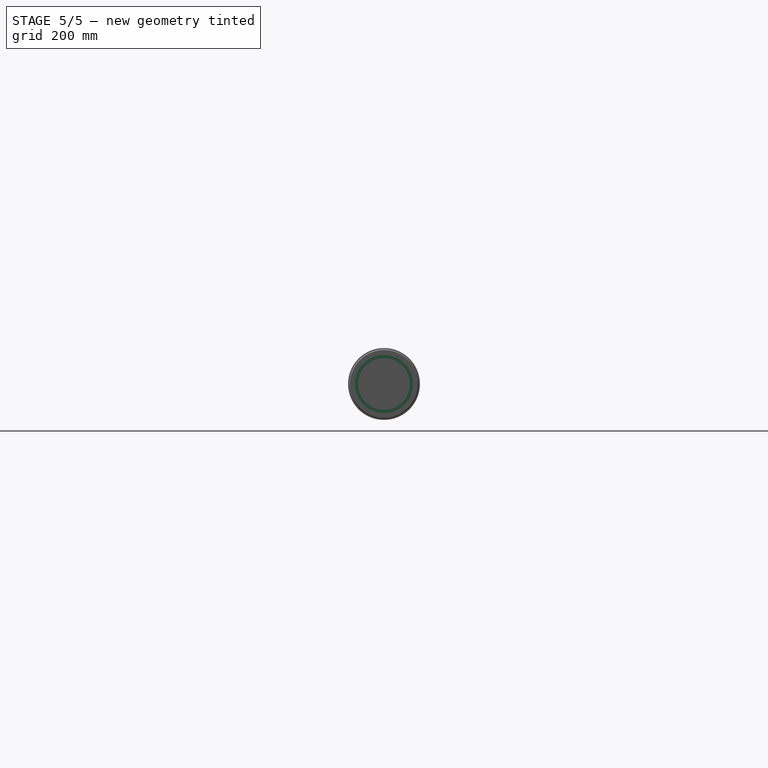
[diagram: stage 5 of 5 — right view after this stage's code; geometry added in this stage tinted green]
FEATURE [Sketcher::SketchObject] Sketch003
  FullyConstrained = true
  MapMode = 5
  Placement = pos=(0,0,0) rot=(0.57735,0.57735,0.57735;2.0944rad)
  Support = -> [YZ_Plane004]
  expr: Constraints[3] = Spreadsheet.B13 + Spreadsheet.B16
  expr: Constraints[1] = Spreadsheet.B13
  sketch-geometry (2):
    g0: Circle CenterX=0 CenterY=0 CenterZ=0 NormalX=0 NormalY=0 NormalZ=1 AngleXU=0 Radius=50.8
    g1: Circle CenterX=0 CenterY=0 CenterZ=0 NormalX=0 NormalY=0 NormalZ=1 AngleXU=0 Radius=56.8
  constraints (4):
    c: Coincident(g0,g-1)
    c: Radius(g0) = 50.8
    c: Coincident(g1,g0)
    c: Radius(g1) = 56.8
FEATURE [PartDesign::Pad] Pad
  Direction = (1,1,1)
  Length = 750
  Length2 = 100
  Placement = pos=(0,0,0) rot=(0.57735,0.57735,0.57735;2.0944rad)
  Profile = -> Sketch003
  Reversed = true
  Type = 0
  expr: Length = Spreadsheet.B19
FEATURE [Sketcher::SketchObject] Sketch006
  FullyConstrained = true
  MapMode = 5
  Support = -> [XY_Plane006]
  expr: Constraints[25] = 5 + Spreadsheet.E6 / 2
  expr: Constraints[24] = Spreadsheet.B19
  expr: Constraints[23] = Spreadsheet.B13
  expr: Constraints[19] = Spreadsheet.E6 * 0.4
  expr: Constraints[18] = Spreadsheet.E6
  sketch-geometry (9):
    g0: LineSegment StartX=-724 StartY=50 StartZ=0 EndX=-722 EndY=50 EndZ=0
    g1: LineSegment StartX=-722 StartY=50 StartZ=0 EndX=-722 EndY=50.8 EndZ=0
    g2: LineSegment StartX=-722 StartY=50.8 StartZ=0 EndX=-724 EndY=50.8 EndZ=0
    g3: LineSegment StartX=-724 StartY=50.8 StartZ=0 EndX=-724 EndY=50 EndZ=0
    g4: LineSegment StartX=-728 StartY=50.8 StartZ=0 EndX=-730 EndY=50.8 EndZ=0
    g5: LineSegment StartX=-730 StartY=50.8 StartZ=0 EndX=-730 EndY=50 EndZ=0
    g6: LineSegment StartX=-730 StartY=50 StartZ=0 EndX=-728 EndY=50 EndZ=0
    g7: LineSegment StartX=-728 StartY=50 StartZ=0 EndX=-728 EndY=50.8 EndZ=0
    g8: LineSegment StartX=-750 StartY=50.8 StartZ=0 EndX=-750 EndY=0 EndZ=0
  constraints (28):
    c: Coincident(g0,g1)
    c: Coincident(g1,g2)
    c: Coincident(g2,g3)
    c: Coincident(g3,g0)
    c: Horizontal(g0)
    c: Horizontal(g2)
    c: Vertical(g1)
    c: Vertical(g3)
    c: Coincident(g4,g5)
    c: Coincident(g5,g6)
    c: Coincident(g6,g7)
    c: Coincident(g7,g4)
    c: Horizontal(g4)
    c: Horizontal(g6)
    c: Vertical(g5)
    c: Vertical(g7)
    c: PointOnObject(g2,g4)
    c: Equal(g4,g2)
    c: DistanceX(g2,g1) = 2
    c: DistanceY(g1,g1) = 0.8
    c: PointOnObject(g6,g0)
    c: Vertical(g8)
    c: PointOnObject(g8,g-1)
    c: DistanceY(g8,g8) = 50.8
    c: DistanceX(g8,g-1) = 750
    c: DistanceX(g4,g1) = 6
    c: PointOnObject(g8,g4)
    c: DistanceX(g8,g4) = 20
FEATURE [PartDesign::Groove] Groove001
  Angle = 360
  Axis = (1,0,0)
  Base = (0,0,0)
  BaseFeature = -> Hole001
  Placement = pos=(0,0,0) rot=(1,0,0;1.5708rad)
  Profile = -> Sketch006
  ReferenceAxis = -> X_Axis006
  Reversed = true
FEATURE [Sketcher::SketchObject] Sketch007
  FullyConstrained = true
  MapMode = 5
  Placement = pos=(0,0,0) rot=(1,0,0;1.5708rad)
  Support = -> [XZ_Plane006]
  expr: Constraints[2] = Spreadsheet.B19 - Spreadsheet.E4 / 2 - 5
  expr: Constraints[1] = Spreadsheet.E4 / 2
  sketch-geometry (1):
    g0: Circle CenterX=-740 CenterY=0 CenterZ=0 NormalX=0 NormalY=0 NormalZ=1 AngleXU=0 Radius=5
  constraints (3):
    c: PointOnObject(g0,g-1)
    c: Radius(g0) = 5
    c: DistanceX(g0,g-1) = 740
FEATURE [PartDesign::Hole] Hole002
  BaseFeature = -> Groove001
  Depth = 25
  DepthType = 1
  Diameter = 11
  DrillForDepth = false
  DrillPoint = 1
  DrillPointAngle = 118
  HoleCutCountersinkAngle = 90
  HoleCutCustomValues = false
  HoleCutDepth = 0
  HoleCutDiameter = 6.1
  HoleCutType = 0
  ModelActualThread = false
  Placement = pos=(0,0,0) rot=(1,0,0;1.5708rad)
  Profile = -> Sketch007
  Tapered = false
  TaperedAngle = 90
  ThreadAngle = 0
  ThreadClass = 0
  ThreadCutOffInner = 0
  ThreadCutOffOuter = 0
  ThreadDirection = 0
  ThreadFit = 0
  ThreadPitch = 0
  ThreadSize = 18
  ThreadType = 1
  Threaded = false
FEATURE [PartDesign::PolarPattern] PolarPattern001
  Angle = 360
  Axis = -> X_Axis006
  BaseFeature = -> Hole002
  Occurrences = 4
  Originals = -> [Hole002]
  Placement = pos=(0,0,0) rot=(1,0,0;1.5708rad)
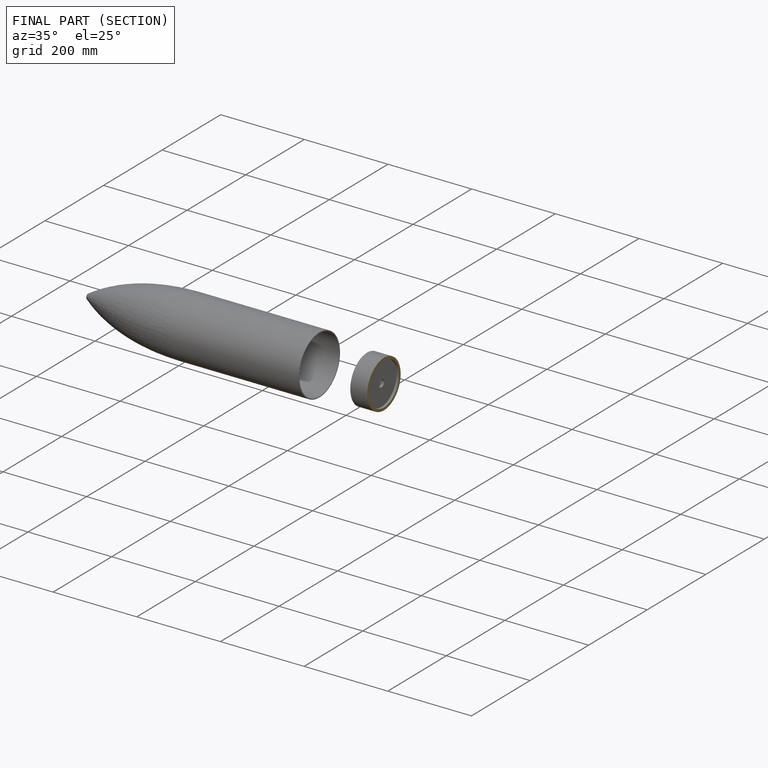
[diagram: finished part — half-section view (interior)]
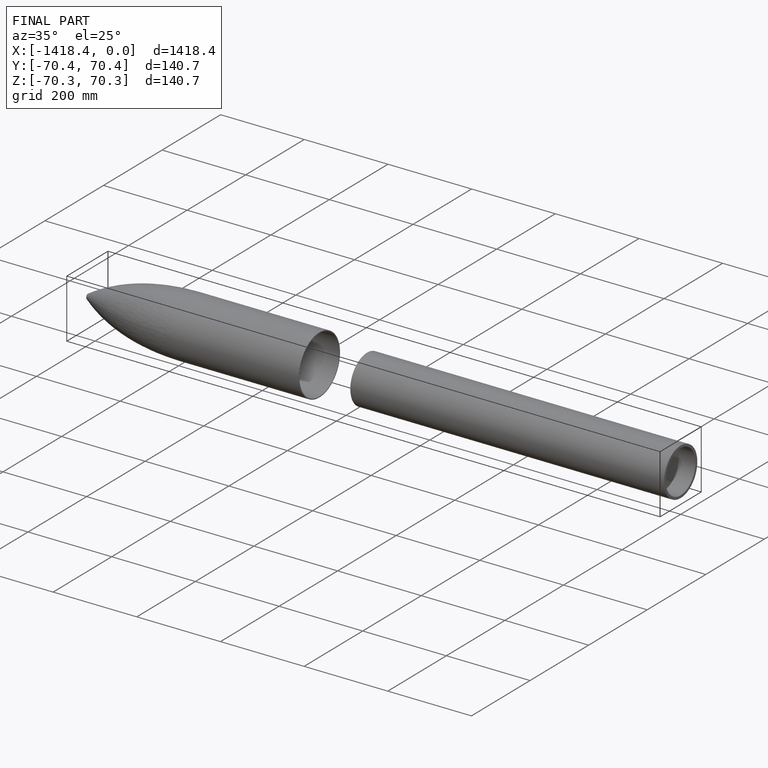
[diagram: finished part — iso view with bounding-box wireframe]
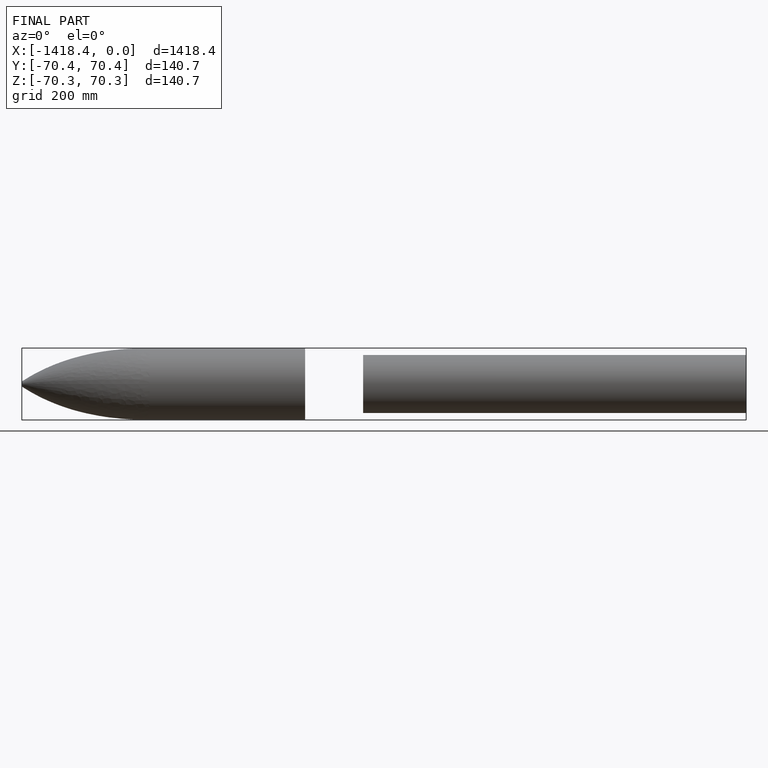
[diagram: finished part — front view with bounding-box wireframe]
